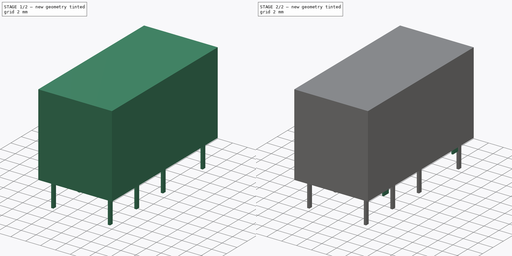
[diagram: build sequence overview — one tinted view per stage of 2, left to right]
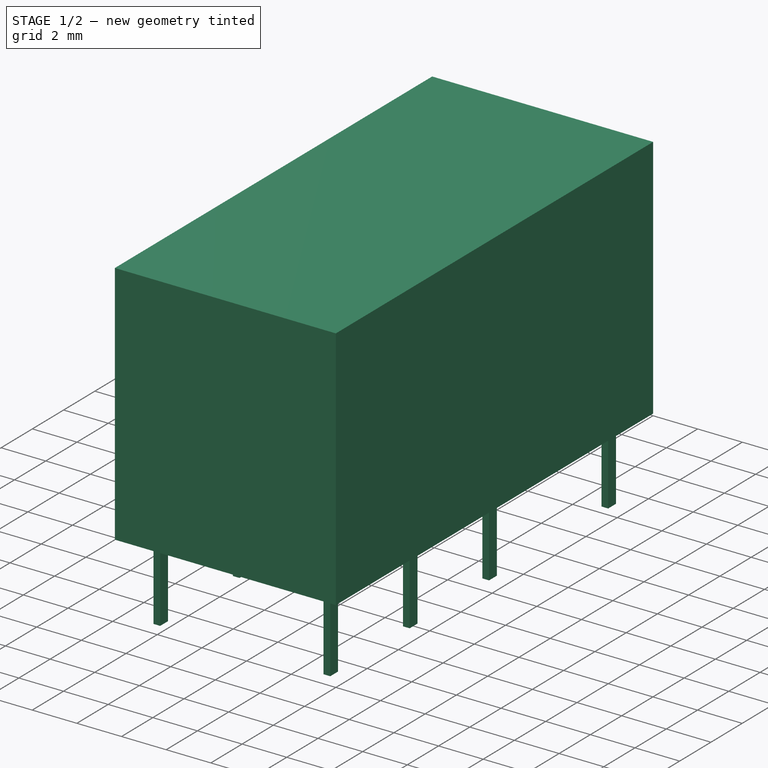
[diagram: stage 1 of 2 — iso view after this stage's code; geometry added in this stage tinted green]
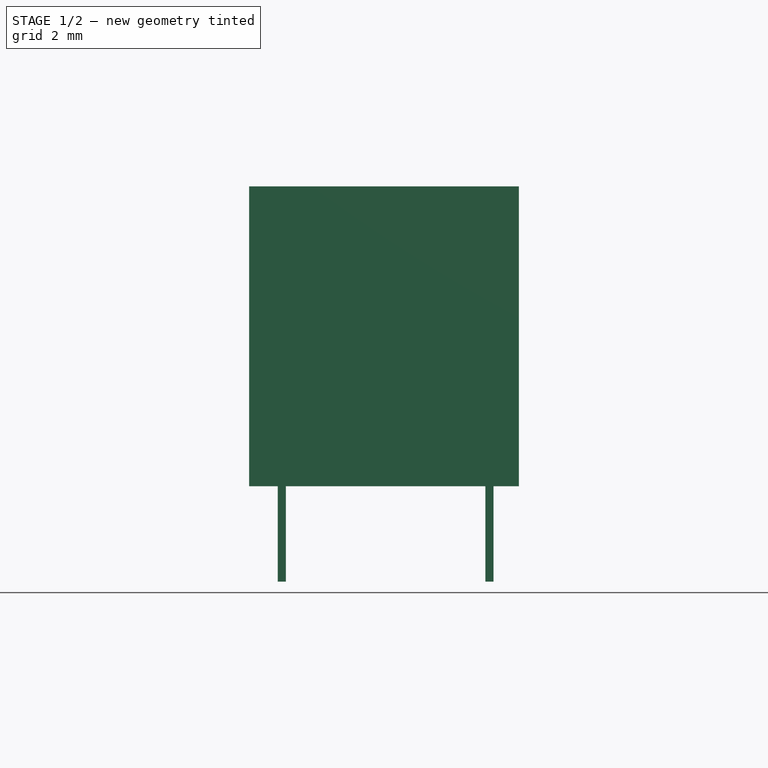
[diagram: stage 1 of 2 — front view after this stage's code; geometry added in this stage tinted green]
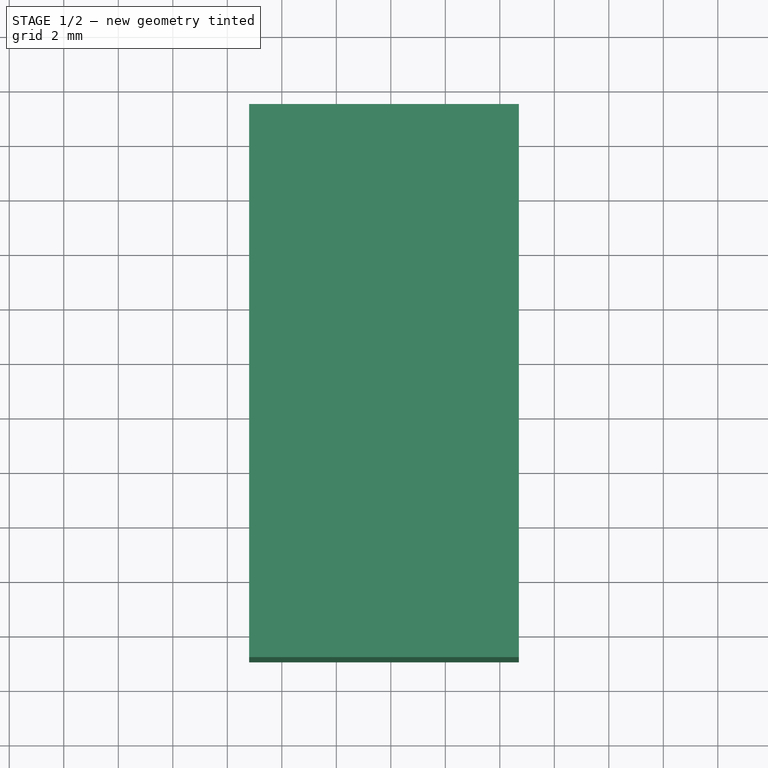
[diagram: stage 1 of 2 — top view after this stage's code; geometry added in this stage tinted green]
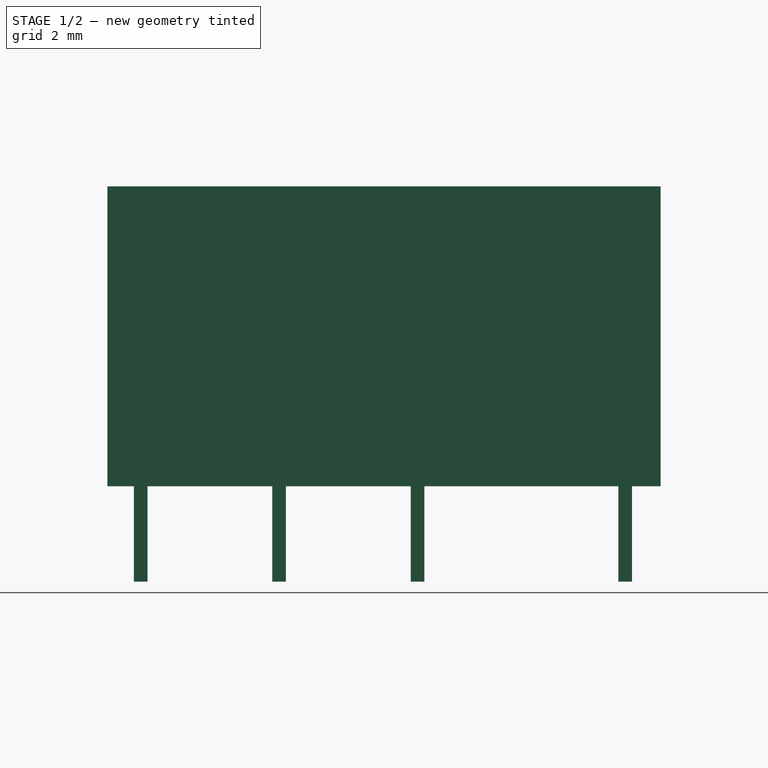
[diagram: stage 1 of 2 — right view after this stage's code; geometry added in this stage tinted green]
FCSTD DOCUMENT  (FreeCAD 0.16R6712 (Git))
Label: Relay_DPDT_Omron_G5V-2
License: All rights reserved
LicenseURL: http://en.wikipedia.org/wiki/All_rights_reserved
objects: Sketcher::SketchObject×4, PartDesign::Pad×3, Part::Feature×1
note: 11 computed .brp shape members not serialized (recipe doc carries the construction recipe); baked Part::Feature solids carry a one-line shape summary decoded from their .brp

FEATURE [Sketcher::SketchObject] Sketch
  Placement = pos=(0,0,0.5) rot=(0,0,1;0rad)
  sketch-geometry (4):
    g0: LineSegment StartX=-1.2 StartY=1.3 StartZ=0 EndX=8.7 EndY=1.3 EndZ=0
    g1: LineSegment StartX=8.7 StartY=1.3 StartZ=0 EndX=8.7 EndY=-19 EndZ=0
    g2: LineSegment StartX=8.7 StartY=-19 StartZ=0 EndX=-1.2 EndY=-19 EndZ=0
    g3: LineSegment StartX=-1.2 StartY=-19 StartZ=0 EndX=-1.2 EndY=1.3 EndZ=0
  constraints (12):
    c: Coincident(g0,g1)
    c: Coincident(g1,g2)
    c: Coincident(g2,g3)
    c: Coincident(g3,g0)
    c: Horizontal(g0)
    c: Horizontal(g2)
    c: Vertical(g1)
    c: Vertical(g3)
    c: DistanceX(g0,g0) = 9.9
    c: DistanceY(g3,g3) = 20.3
    c: DistanceX(g0,g-1) = 1.2
    c: DistanceY(g-1,g0) = 1.3
FEATURE [PartDesign::Pad] Pad
  Length = 11
  Length2 = 100
  Placement = pos=(0,0,0.5) rot=(0,0,1;0rad)
  Sketch = -> Sketch
  Type = 0
FEATURE [Sketcher::SketchObject] Sketch001
  Placement = pos=(0,0,0.5) rot=(1,0,0;3.14159rad)
  Support = -> Pad [Face5]
  sketch-geometry (41):
    g0: LineSegment StartX=-0.15 StartY=0.25 StartZ=0 EndX=0.15 EndY=0.25 EndZ=0
    g1: LineSegment StartX=0.15 StartY=0.25 StartZ=0 EndX=0.15 EndY=-0.25 EndZ=0
    g2: LineSegment StartX=0.15 StartY=-0.25 StartZ=0 EndX=-0.15 EndY=-0.25 EndZ=0
    g3: LineSegment StartX=-0.15 StartY=-0.25 StartZ=0 EndX=-0.15 EndY=0.25 EndZ=0
    g4: GeomPoint [constr] X=0 Y=0 Z=0
    g5: LineSegment StartX=-0.15 StartY=7.87 StartZ=0 EndX=0.15 EndY=7.87 EndZ=0
    g6: LineSegment StartX=0.15 StartY=7.87 StartZ=0 EndX=0.15 EndY=7.37 EndZ=0
    g7: LineSegment StartX=0.15 StartY=7.37 StartZ=0 EndX=-0.15 EndY=7.37 EndZ=0
    g8: LineSegment StartX=-0.15 StartY=7.37 StartZ=0 EndX=-0.15 EndY=7.87 EndZ=0
    g9: GeomPoint [constr] X=0 Y=7.62 Z=0
    g10: LineSegment StartX=-0.15 StartY=12.95 StartZ=0 EndX=0.15 EndY=12.95 EndZ=0
    g11: LineSegment StartX=0.15 StartY=12.95 StartZ=0 EndX=0.15 EndY=12.45 EndZ=0
    g12: LineSegment StartX=0.15 StartY=12.45 StartZ=0 EndX=-0.15 EndY=12.45 EndZ=0
    g13: LineSegment StartX=-0.15 StartY=12.45 StartZ=0 EndX=-0.15 EndY=12.95 EndZ=0
    g14: GeomPoint [constr] X=0 Y=12.7 Z=0
    g15: LineSegment StartX=-0.15 StartY=18.03 StartZ=0 EndX=0.15 EndY=18.03 EndZ=0
    g16: LineSegment StartX=0.15 StartY=18.03 StartZ=0 EndX=0.15 EndY=17.53 EndZ=0
    g17: LineSegment StartX=0.15 StartY=17.53 StartZ=0 EndX=-0.15 EndY=17.53 EndZ=0
    g18: LineSegment StartX=-0.15 StartY=17.53 StartZ=0 EndX=-0.15 EndY=18.03 EndZ=0
    g19: GeomPoint [constr] X=0 Y=17.78 Z=0
    g20: LineSegment StartX=7.47 StartY=0.25 StartZ=0 EndX=7.77 EndY=0.25 EndZ=0
    g21: LineSegment StartX=7.77 StartY=0.25 StartZ=0 EndX=7.77 EndY=-0.25 EndZ=0
    g22: LineSegment StartX=7.77 StartY=-0.25 StartZ=0 EndX=7.47 EndY=-0.25 EndZ=0
    g23: LineSegment StartX=7.47 StartY=-0.25 StartZ=0 EndX=7.47 EndY=0.25 EndZ=0
    g24: GeomPoint [constr] X=7.62 Y=0 Z=0
    g25: LineSegment StartX=7.47 StartY=7.87 StartZ=0 EndX=7.77 EndY=7.87 EndZ=0
    g26: LineSegment StartX=7.77 StartY=7.87 StartZ=0 EndX=7.77 EndY=7.37 EndZ=0
    g27: LineSegment StartX=7.77 StartY=7.37 StartZ=0 EndX=7.47 EndY=7.37 EndZ=0
    g28: LineSegment StartX=7.47 StartY=7.37 StartZ=0 EndX=7.47 EndY=7.87 EndZ=0
    g29: GeomPoint [constr] X=7.62 Y=7.62 Z=0
    g30: LineSegment StartX=7.47 StartY=12.95 StartZ=0 EndX=7.77 EndY=12.95 EndZ=0
    g31: LineSegment StartX=7.77 StartY=12.95 StartZ=0 EndX=7.77 EndY=12.45 EndZ=0
    g32: LineSegment StartX=7.77 StartY=12.45 StartZ=0 EndX=7.47 EndY=12.45 EndZ=0
    g33: LineSegment StartX=7.47 StartY=12.45 StartZ=0 EndX=7.47 EndY=12.95 EndZ=0
    g34: GeomPoint [constr] X=7.62 Y=12.7 Z=0
    g35: LineSegment StartX=7.47 StartY=18.03 StartZ=0 EndX=7.77 EndY=18.03 EndZ=0
    g36: LineSegment StartX=7.77 StartY=18.03 StartZ=0 EndX=7.77 EndY=17.53 EndZ=0
    g37: LineSegment StartX=7.77 StartY=17.53 StartZ=0 EndX=7.47 EndY=17.53 EndZ=0
    g38: LineSegment StartX=7.47 StartY=17.53 StartZ=0 EndX=7.47 EndY=18.03 EndZ=0
    g39: GeomPoint [constr] X=7.62 Y=17.78 Z=0
    g40: LineSegment [constr] StartX=7.62 StartY=0 StartZ=0 EndX=7.62 EndY=17.78 EndZ=0
  constraints (113):
    c: Coincident(g0,g1)
    c: Coincident(g1,g2)
    c: Coincident(g2,g3)
    c: Coincident(g3,g0)
    c: Horizontal(g0)
    c: Horizontal(g2)
    c: Vertical(g1)
    c: Vertical(g3)
    c: DistanceX(g2,g2) = 0.3
    c: DistanceY(g3,g3) = 0.5
    c: DistanceY(g1,g4) = 0.25
    c: DistanceX(g4,g0) = 0.15
    c: Coincident(g5,g6)
    c: Coincident(g6,g7)
    c: Coincident(g7,g8)
    c: Coincident(g8,g5)
    c: Horizontal(g5)
    c: Horizontal(g7)
    c: Vertical(g6)
    c: Vertical(g8)
    c: DistanceX(g7,g7) = 0.3
    c: DistanceY(g8,g8) = 0.5
    c: DistanceY(g6,g9) = 0.25
    c: DistanceX(g9,g5) = 0.15
    c: Coincident(g4,g-1)
    c: PointOnObject(g9,g-2)
    c: Coincident(g10,g11)
    c: Coincident(g11,g12)
    c: Coincident(g12,g13)
    c: Coincident(g13,g10)
    c: Horizontal(g10)
    c: Horizontal(g12)
    c: Vertical(g11)
    c: Vertical(g13)
    c: DistanceX(g12,g12) = 0.3
    c: DistanceY(g13,g13) = 0.5
    c: DistanceY(g11,g14) = 0.25
    c: DistanceX(g14,g10) = 0.15
    c: PointOnObject(g14,g-2)
    c: Coincident(g15,g16)
    c: Coincident(g16,g17)
    c: Coincident(g17,g18)
    c: Coincident(g18,g15)
    c: Horizontal(g15)
    c: Horizontal(g17)
    c: Vertical(g16)
    c: Vertical(g18)
    c: DistanceX(g17,g17) = 0.3
    c: DistanceY(g18,g18) = 0.5
    c: DistanceY(g16,g19) = 0.25
    c: DistanceX(g19,g15) = 0.15
    c: PointOnObject(g19,g-2)
    c: DistanceY(g14,g19) = 5.08
    c: DistanceY(g9,g14) = 5.08
    c: DistanceY(g-1,g9) = 7.62
    c: Coincident(g20,g21)
    c: Coincident(g21,g22)
    c: Coincident(g22,g23)
    c: Coincident(g23,g20)
    c: Horizontal(g20)
    c: Horizontal(g22)
    c: Vertical(g21)
    c: Vertical(g23)
    c: DistanceX(g22,g22) = 0.3
    c: DistanceY(g23,g23) = 0.5
    c: DistanceY(g21,g24) = 0.25
    c: DistanceX(g24,g20) = 0.15
    c: Coincident(g25,g26)
    c: Coincident(g26,g27)
    c: Coincident(g27,g28)
    c: Coincident(g28,g25)
    c: Horizontal(g25)
    c: Horizontal(g27)
    c: Vertical(g26)
    c: Vertical(g28)
    c: DistanceX(g27,g27) = 0.3
    c: DistanceY(g28,g28) = 0.5
    c: DistanceY(g26,g29) = 0.25
    c: DistanceX(g29,g25) = 0.15
    c: Coincident(g30,g31)
    c: Coincident(g31,g32)
    c: Coincident(g32,g33)
    c: Coincident(g33,g30)
    c: Horizontal(g30)
    c: Horizontal(g32)
    c: Vertical(g31)
    c: Vertical(g33)
    c: DistanceX(g32,g32) = 0.3
    c: DistanceY(g33,g33) = 0.5
    c: DistanceY(g31,g34) = 0.25
    c: DistanceX(g34,g30) = 0.15
    c: Coincident(g35,g36)
    c: Coincident(g36,g37)
    c: Coincident(g37,g38)
    c: Coincident(g38,g35)
    c: Horizontal(g35)
    c: Horizontal(g37)
    c: Vertical(g36)
    c: Vertical(g38)
    c: DistanceX(g37,g37) = 0.3
    c: DistanceY(g38,g38) = 0.5
    c: DistanceY(g36,g39) = 0.25
    c: DistanceX(g39,g35) = 0.15
    c: DistanceY(g34,g39) = 5.08
    c: DistanceY(g29,g34) = 5.08
    c: DistanceY(g24,g29) = 7.62
    c: PointOnObject(g24,g-1)
    c: DistanceX(g-1,g24) = 7.62
    c: Coincident(g40,g24)
    c: Coincident(g40,g39)
    c: Vertical(g40)
    c: PointOnObject(g34,g40)
    c: PointOnObject(g29,g40)
FEATURE [PartDesign::Pad] Pad001
  Length = 3.5
  Length2 = 100
  Placement = pos=(0,0,0.5) rot=(0,0,1;0rad)
  Sketch = -> Sketch001
  Type = 0
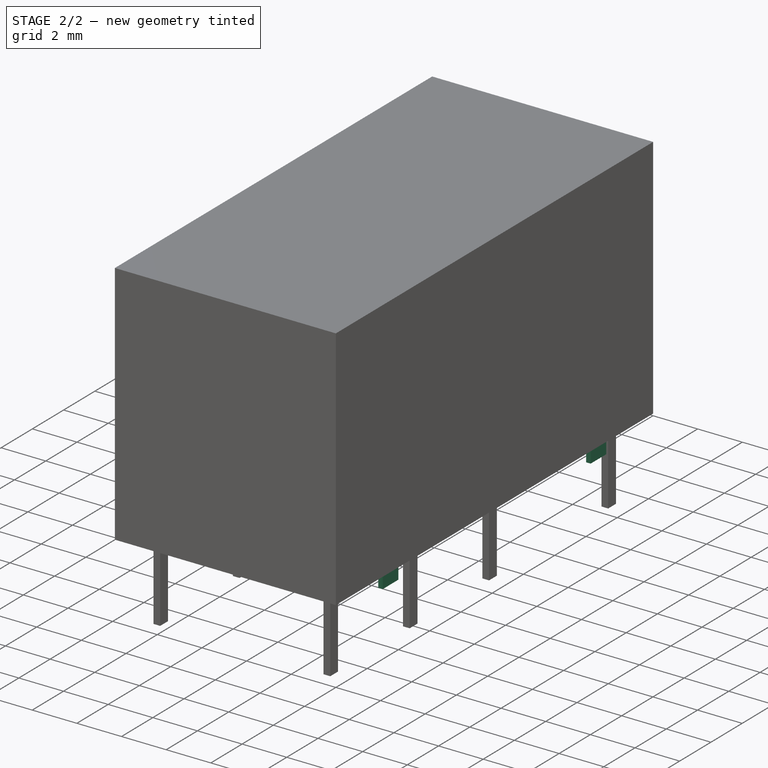
[diagram: stage 2 of 2 — iso view after this stage's code; geometry added in this stage tinted green]
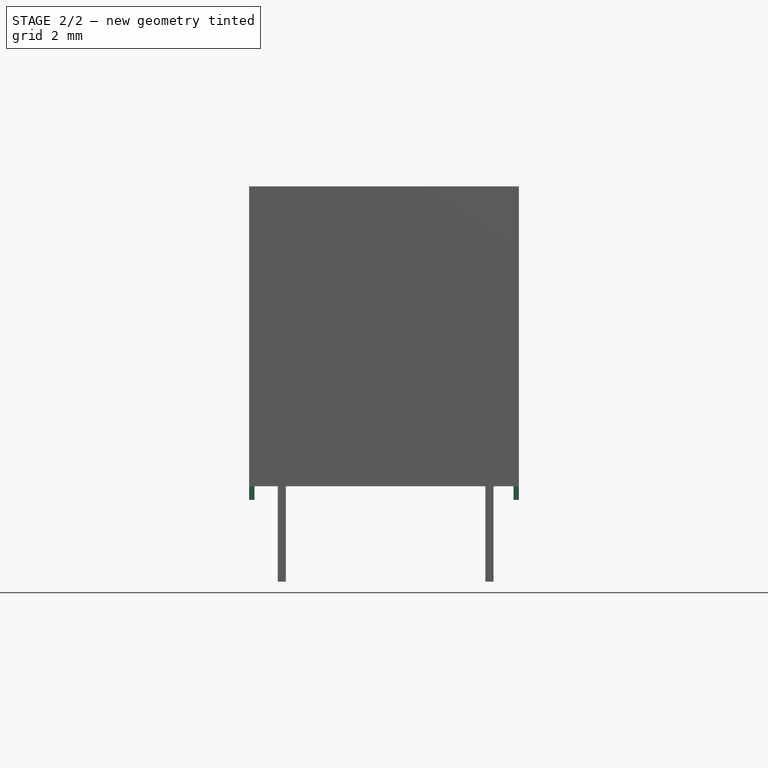
[diagram: stage 2 of 2 — front view after this stage's code; geometry added in this stage tinted green]
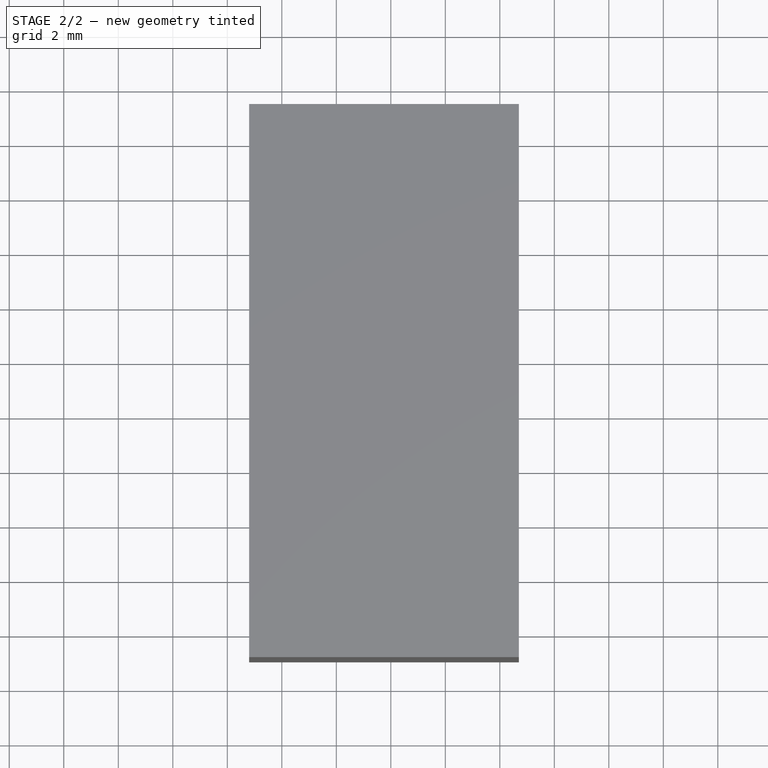
[diagram: stage 2 of 2 — top view after this stage's code; geometry added in this stage tinted green]
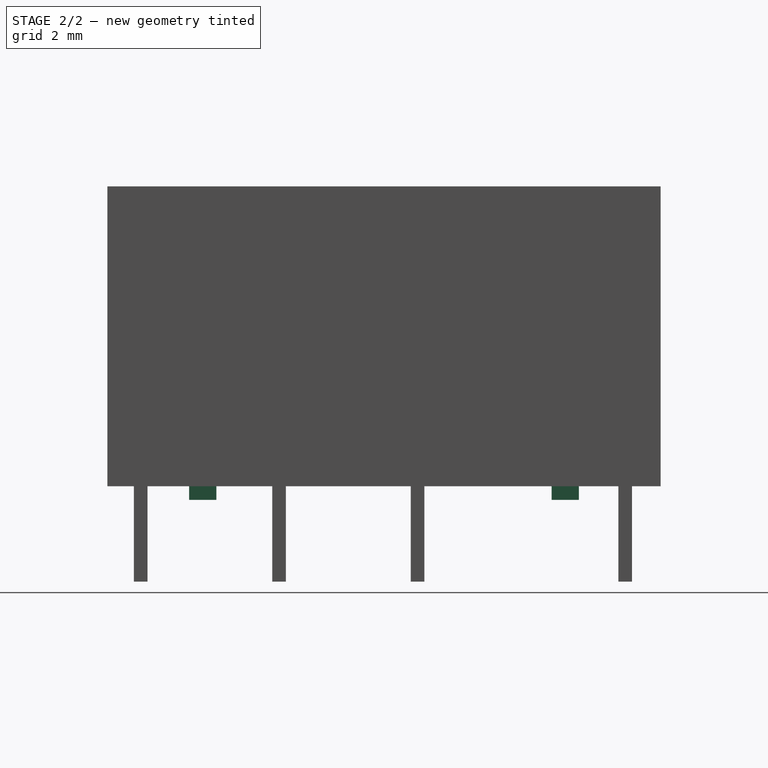
[diagram: stage 2 of 2 — right view after this stage's code; geometry added in this stage tinted green]
FEATURE [Sketcher::SketchObject] Sketch002
  ExternalGeometry = -> [Pad001]
  Placement = pos=(0,0,0.5) rot=(1,0,0;3.14159rad)
  Support = -> Pad001 [Face4]
  sketch-geometry (16):
    g0: LineSegment StartX=-1.2 StartY=2.7 StartZ=0 EndX=-1 EndY=2.7 EndZ=0
    g1: LineSegment StartX=-1 StartY=2.7 StartZ=0 EndX=-1 EndY=1.7 EndZ=0
    g2: LineSegment StartX=-1 StartY=1.7 StartZ=0 EndX=-1.2 EndY=1.7 EndZ=0
    g3: LineSegment StartX=-1.2 StartY=1.7 StartZ=0 EndX=-1.2 EndY=2.7 EndZ=0
    g4: LineSegment StartX=8.5 StartY=16 StartZ=0 EndX=8.7 EndY=16 EndZ=0
    g5: LineSegment StartX=8.7 StartY=16 StartZ=0 EndX=8.7 EndY=15 EndZ=0
    g6: LineSegment StartX=8.7 StartY=15 StartZ=0 EndX=8.5 EndY=15 EndZ=0
    g7: LineSegment StartX=8.5 StartY=15 StartZ=0 EndX=8.5 EndY=16 EndZ=0
    g8: LineSegment StartX=8.5 StartY=2.7 StartZ=0 EndX=8.7 EndY=2.7 EndZ=0
    g9: LineSegment StartX=8.7 StartY=2.7 StartZ=0 EndX=8.7 EndY=1.7 EndZ=0
    g10: LineSegment StartX=8.7 StartY=1.7 StartZ=0 EndX=8.5 EndY=1.7 EndZ=0
    g11: LineSegment StartX=8.5 StartY=1.7 StartZ=0 EndX=8.5 EndY=2.7 EndZ=0
    g12: LineSegment StartX=-1.2 StartY=16 StartZ=0 EndX=-1 EndY=16 EndZ=0
    g13: LineSegment StartX=-1 StartY=16 StartZ=0 EndX=-1 EndY=15 EndZ=0
    g14: LineSegment StartX=-1 StartY=15 StartZ=0 EndX=-1.2 EndY=15 EndZ=0
    g15: LineSegment StartX=-1.2 StartY=15 StartZ=0 EndX=-1.2 EndY=16 EndZ=0
  constraints (48):
    c: Coincident(g0,g1)
    c: Coincident(g1,g2)
    c: Coincident(g2,g3)
    c: Coincident(g3,g0)
    c: Horizontal(g0)
    c: Horizontal(g2)
    c: Vertical(g1)
    c: Vertical(g3)
    c: DistanceX(g2,g2) = 0.2
    c: DistanceY(g3,g3) = 1
    c: Coincident(g4,g5)
    c: Coincident(g5,g6)
    c: Coincident(g6,g7)
    c: Coincident(g7,g4)
    c: Horizontal(g4)
    c: Horizontal(g6)
    c: Vertical(g5)
    c: Vertical(g7)
    c: DistanceX(g6,g6) = 0.2
    c: DistanceY(g7,g7) = 1
    c: Coincident(g8,g9)
    c: Coincident(g9,g10)
    c: Coincident(g10,g11)
    c: Coincident(g11,g8)
    c: Horizontal(g8)
    c: Horizontal(g10)
    c: Vertical(g9)
    c: Vertical(g11)
    c: DistanceX(g10,g10) = 0.2
    c: DistanceY(g11,g11) = 1
    c: Coincident(g12,g13)
    c: Coincident(g13,g14)
    c: Coincident(g14,g15)
    c: Coincident(g15,g12)
    c: Horizontal(g12)
    c: Horizontal(g14)
    c: Vertical(g13)
    c: Vertical(g15)
    c: DistanceX(g14,g14) = 0.2
    c: DistanceY(g15,g15) = 1
    c: PointOnObject(g2,g-4)
    c: DistanceY(g-4,g2) = 3
    c: PointOnObject(g12,g-4)
    c: DistanceY(g12,g-4) = 3
    c: PointOnObject(g9,g-3)
    c: DistanceY(g-3,g9) = 3
    c: PointOnObject(g4,g-3)
    c: DistanceY(g4,g-3) = 3
FEATURE [PartDesign::Pad] Pad002
  Length = 0.5
  Length2 = 100
  Placement = pos=(0,0,0.5) rot=(0,0,1;0rad)
  Sketch = -> Sketch002
  Type = 0
FEATURE [Sketcher::SketchObject] Sketch003
  ExternalGeometry = -> [Pad002]
  Placement = pos=(0,0,11.5) rot=(0,0,1;0rad)
  Support = -> Pad002 [Face3]
  sketch-geometry (4):
    g0: LineSegment StartX=2.94741 StartY=1.3 StartZ=0 EndX=4.94741 EndY=1.3 EndZ=0
    g1: LineSegment StartX=4.94741 StartY=1.3 StartZ=0 EndX=4.94741 EndY=-0.7 EndZ=0
    g2: LineSegment StartX=4.94741 StartY=-0.7 StartZ=0 EndX=2.94741 EndY=-0.7 EndZ=0
    g3: LineSegment StartX=2.94741 StartY=-0.7 StartZ=0 EndX=2.94741 EndY=1.3 EndZ=0
  constraints (11):
    c: Coincident(g0,g1)
    c: Coincident(g1,g2)
    c: Coincident(g2,g3)
    c: Coincident(g3,g0)
    c: Horizontal(g0)
    c: Horizontal(g2)
    c: Vertical(g1)
    c: Vertical(g3)
    c: PointOnObject(g0,g-3)
    c: DistanceX(g2,g2) = 2
    c: DistanceY(g3,g3) = 2
FEATURE [Part::Feature] Shape001  label="Relay_DPDT_Omron_G5V-2"
  shape: bbox 9.9 x 20.3 x 14.5 mm, 66 faces (baked)
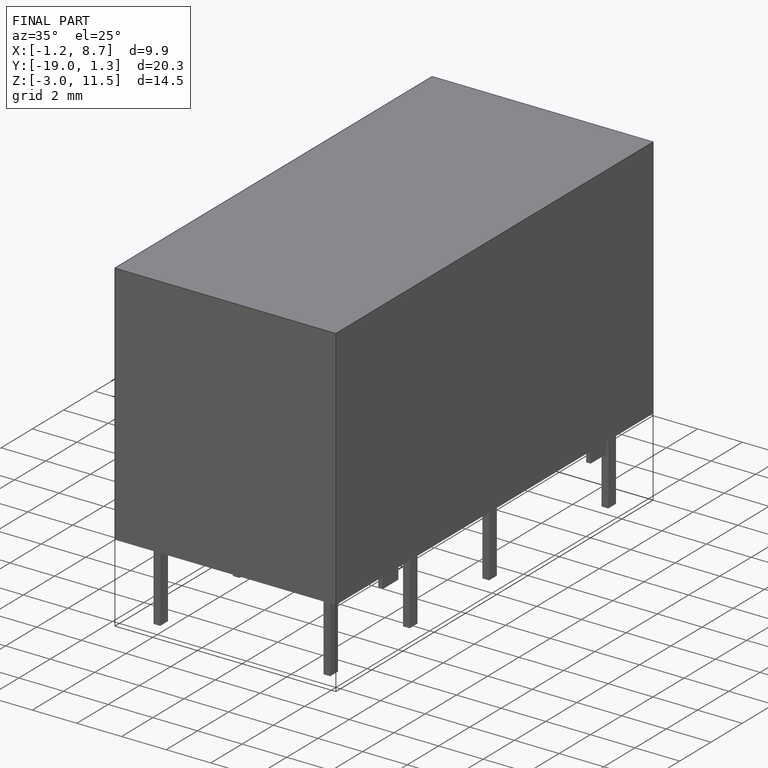
[diagram: finished part — iso view with bounding-box wireframe]
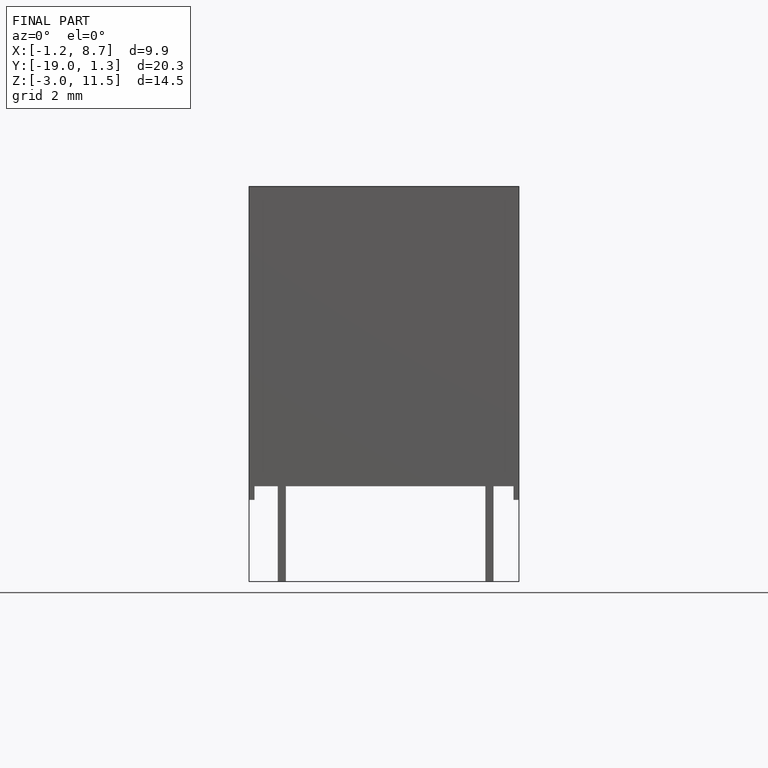
[diagram: finished part — front view with bounding-box wireframe]
